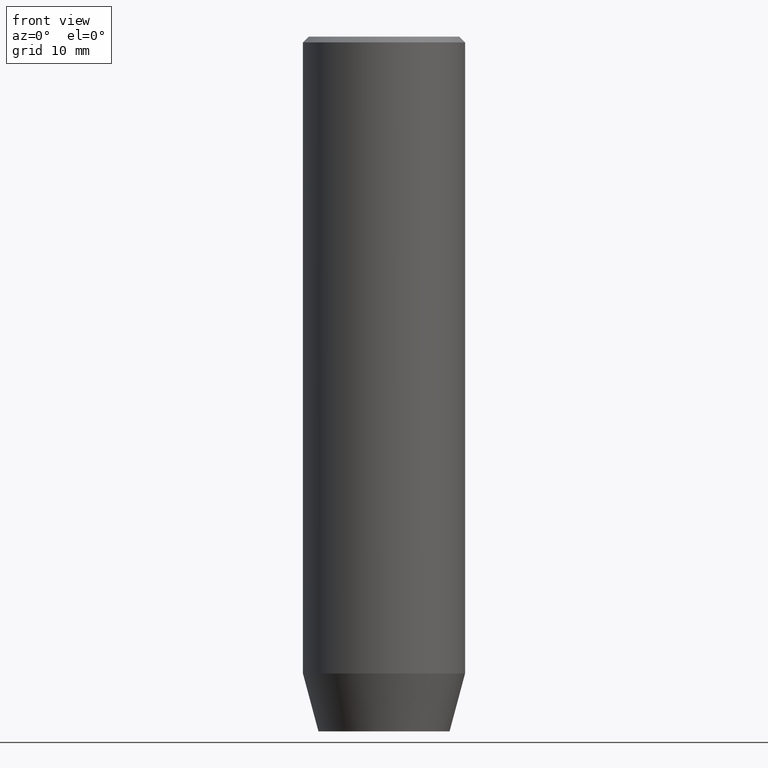
[diagram: clean part render]
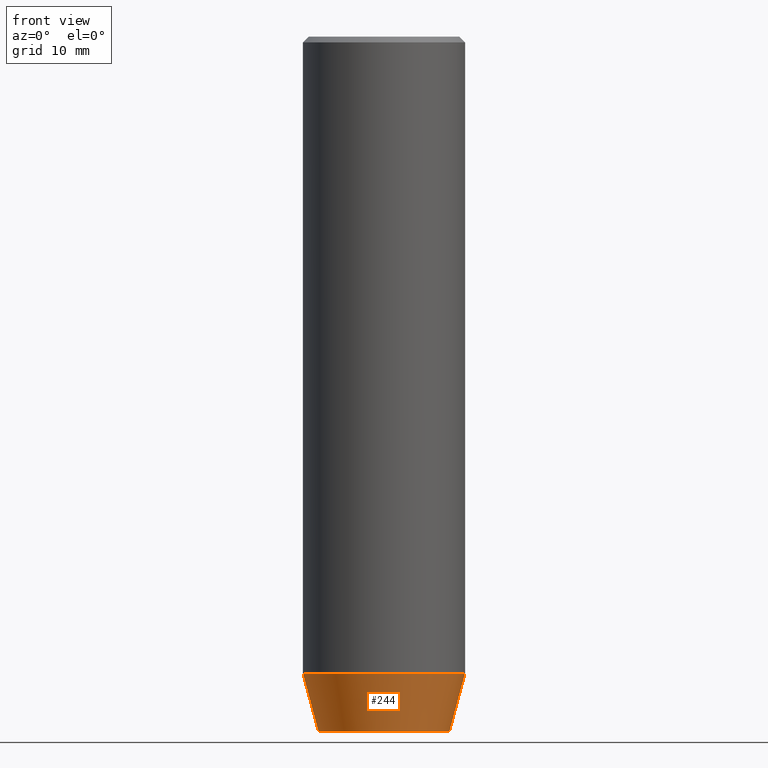
[diagram: same view with one face highlighted and labeled with its STEP entity id]
A machine part, front view. The second image highlights one B-rep face of the part: STEP entity #244.
In plain terms, the highlighted conical surface has half-angle 15 deg.
Its self-contained STEP definition (entity closure, byte-faithful):
#2 = EDGE_CURVE ( 'NONE', #94, #56, #45, .T. ) ;
#10 = LINE ( 'NONE', #464, #111 ) ;
#14 = LINE ( 'NONE', #330, #246 ) ;
#15 = DIRECTION ( 'NONE',  ( 1.000000000000000000, 0.000000000000000000, 0.000000000000000000 ) ) ;
#33 = ORIENTED_EDGE ( 'NONE', *, *, #2, .F. ) ;
#45 = CIRCLE ( 'NONE', #467, 7.000000000000000000 ) ;
#56 = VERTEX_POINT ( 'NONE', #438 ) ;
#68 = CARTESIAN_POINT ( 'NONE',  ( 0.000000000000000000, 0.000000000000000000, -60.00000000000000000 ) ) ;
#83 = CONICAL_SURFACE ( 'NONE', #513, 7.000000000000000000, 0.2617993877991499074 ) ;
#94 = VERTEX_POINT ( 'NONE', #398 ) ;
#111 = VECTOR ( 'NONE', #379, 1000.000000000000114 ) ;
#147 = DIRECTION ( 'NONE',  ( 1.000000000000000000, 0.000000000000000000, 0.000000000000000000 ) ) ;
#190 = DIRECTION ( 'NONE',  ( -0.000000000000000000, -0.000000000000000000, 1.000000000000000000 ) ) ;
#192 = DIRECTION ( 'NONE',  ( 0.2588190451025211836, 0.000000000000000000, 0.9659258262890680902 ) ) ;
#214 = ORIENTED_EDGE ( 'NONE', *, *, #498, .T. ) ;
#237 = DIRECTION ( 'NONE',  ( -0.000000000000000000, -0.000000000000000000, 1.000000000000000000 ) ) ;
#240 = AXIS2_PLACEMENT_3D ( 'NONE', #68, #309, #396 ) ;
#244 = ADVANCED_FACE ( 'NONE', ( #422 ), #83, .T. ) ;
#246 = VECTOR ( 'NONE', #192, 1000.000000000000114 ) ;
#273 = EDGE_CURVE ( 'NONE', #365, #94, #10, .T. ) ;
#282 = VERTEX_POINT ( 'NONE', #332 ) ;
#290 = CARTESIAN_POINT ( 'NONE',  ( 0.000000000000000000, 0.000000000000000000, -55.00000000000000000 ) ) ;
#309 = DIRECTION ( 'NONE',  ( -0.000000000000000000, -0.000000000000000000, 1.000000000000000000 ) ) ;
#317 = EDGE_LOOP ( 'NONE', ( #360, #214, #363, #33 ) ) ;
#330 = CARTESIAN_POINT ( 'NONE',  ( 7.000000000000000000, 0.000000000000000000, -55.00000000000000000 ) ) ;
#332 = CARTESIAN_POINT ( 'NONE',  ( 5.660254037844384634, 0.000000000000000000, -60.00000000000000000 ) ) ;
#339 = EDGE_CURVE ( 'NONE', #282, #56, #14, .T. ) ;
#360 = ORIENTED_EDGE ( 'NONE', *, *, #273, .F. ) ;
#363 = ORIENTED_EDGE ( 'NONE', *, *, #339, .T. ) ;
#365 = VERTEX_POINT ( 'NONE', #420 ) ;
#379 = DIRECTION ( 'NONE',  ( -0.2588190451025211836, 3.169619151431770488E-17, 0.9659258262890680902 ) ) ;
#396 = DIRECTION ( 'NONE',  ( 1.000000000000000000, 0.000000000000000000, 0.000000000000000000 ) ) ;
#398 = CARTESIAN_POINT ( 'NONE',  ( -7.000000000000000000, 8.572527594031473190E-16, -55.00000000000000000 ) ) ;
#420 = CARTESIAN_POINT ( 'NONE',  ( -5.660254037844384634, 7.752169791919240742E-16, -60.00000000000000000 ) ) ;
#422 = FACE_OUTER_BOUND ( 'NONE', #317, .T. ) ;
#438 = CARTESIAN_POINT ( 'NONE',  ( 7.000000000000000000, 0.000000000000000000, -55.00000000000000000 ) ) ;
#450 = CIRCLE ( 'NONE', #240, 5.660254037844384634 ) ;
#464 = CARTESIAN_POINT ( 'NONE',  ( -7.000000000000000000, 8.572527594031473190E-16, -55.00000000000000000 ) ) ;
#466 = CARTESIAN_POINT ( 'NONE',  ( 0.000000000000000000, 0.000000000000000000, -55.00000000000000000 ) ) ;
#467 = AXIS2_PLACEMENT_3D ( 'NONE', #290, #237, #15 ) ;
#498 = EDGE_CURVE ( 'NONE', #365, #282, #450, .T. ) ;
#513 = AXIS2_PLACEMENT_3D ( 'NONE', #466, #190, #147 ) ;